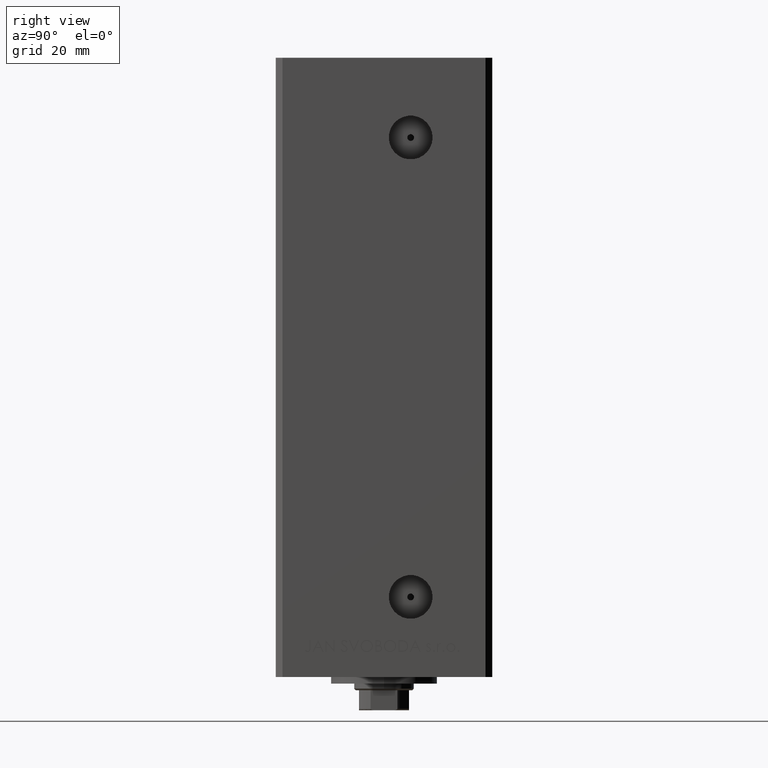
[diagram: clean part render]
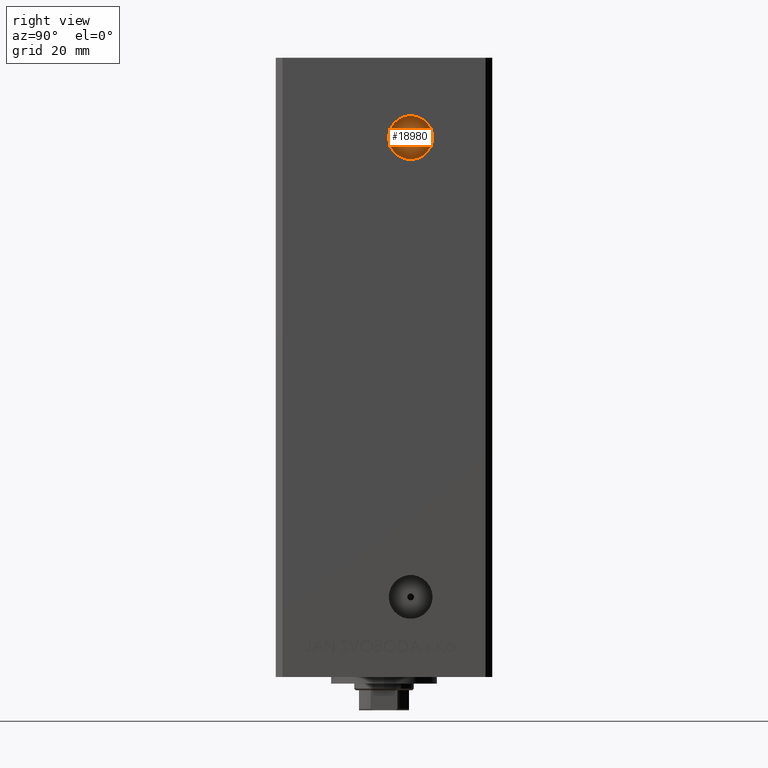
[diagram: same view with one face highlighted and labeled with its STEP entity id]
A machine part, right view. The second image highlights one B-rep face of the part: STEP entity #18980.
In plain terms, the highlighted planar face has unit normal (1, -0, 0).
Its self-contained STEP definition (entity closure, byte-faithful):
#1000 = VERTEX_POINT ( 'NONE', #10564 ) ;
#1093 = AXIS2_PLACEMENT_3D ( 'NONE', #17165, #36094, #16252 ) ;
#1196 = CIRCLE ( 'NONE', #48129, 0.9999999999999991118 ) ;
#1292 = CIRCLE ( 'NONE', #2872, 6.580000000000014282 ) ;
#2872 = AXIS2_PLACEMENT_3D ( 'NONE', #7316, #23524, #49182 ) ;
#3456 = EDGE_LOOP ( 'NONE', ( #7677, #27483 ) ) ;
#4092 = AXIS2_PLACEMENT_3D ( 'NONE', #41078, #25889, #18171 ) ;
#4334 = DIRECTION ( 'NONE',  ( 1.000000000000000000, -2.275047181608927644E-16, 0.000000000000000000 ) ) ;
#4979 = ORIENTED_EDGE ( 'NONE', *, *, #26172, .T. ) ;
#5947 = PLANE ( 'NONE',  #1093 ) ;
#7316 = CARTESIAN_POINT ( 'NONE',  ( 24.50000000000000000, 7.999999999999994671, 147.0000000000000000 ) ) ;
#7677 = ORIENTED_EDGE ( 'NONE', *, *, #25601, .F. ) ;
#10475 = VERTEX_POINT ( 'NONE', #42762 ) ;
#10564 = CARTESIAN_POINT ( 'NONE',  ( 24.50000000000000000, 14.58000000000000895, 147.0000000000000000 ) ) ;
#11268 = ORIENTED_EDGE ( 'NONE', *, *, #13652, .T. ) ;
#13652 = EDGE_CURVE ( 'NONE', #20744, #1000, #36718, .T. ) ;
#15621 = CIRCLE ( 'NONE', #45047, 0.9999999999999991118 ) ;
#15795 = CARTESIAN_POINT ( 'NONE',  ( 24.50000000000000000, 7.999999999999994671, 147.0000000000000000 ) ) ;
#16252 = DIRECTION ( 'NONE',  ( 2.275047181608927644E-16, 1.000000000000000000, 0.000000000000000000 ) ) ;
#17165 = CARTESIAN_POINT ( 'NONE',  ( 24.50000000000000000, 7.999999999999994671, 147.0000000000000000 ) ) ;
#17739 = DIRECTION ( 'NONE',  ( 1.000000000000000000, -2.275047181608927644E-16, 0.000000000000000000 ) ) ;
#18171 = DIRECTION ( 'NONE',  ( 0.000000000000000000, 1.000000000000000000, 0.000000000000000000 ) ) ;
#18733 = CARTESIAN_POINT ( 'NONE',  ( 24.50000000000000000, 8.999999999999994671, 147.0000000000000000 ) ) ;
#18980 = ADVANCED_FACE ( 'NONE', ( #19499, #46162 ), #5947, .T. ) ;
#19499 = FACE_BOUND ( 'NONE', #3456, .T. ) ;
#20744 = VERTEX_POINT ( 'NONE', #45111 ) ;
#21477 = CARTESIAN_POINT ( 'NONE',  ( 24.50000000000000000, 7.999999999999994671, 147.0000000000000000 ) ) ;
#23044 = EDGE_CURVE ( 'NONE', #10475, #23921, #1196, .T. ) ;
#23524 = DIRECTION ( 'NONE',  ( 1.000000000000000000, -2.275047181608927644E-16, 0.000000000000000000 ) ) ;
#23921 = VERTEX_POINT ( 'NONE', #18733 ) ;
#25601 = EDGE_CURVE ( 'NONE', #23921, #10475, #15621, .T. ) ;
#25739 = EDGE_LOOP ( 'NONE', ( #4979, #11268 ) ) ;
#25889 = DIRECTION ( 'NONE',  ( 1.000000000000000000, -2.275047181608927644E-16, 0.000000000000000000 ) ) ;
#26172 = EDGE_CURVE ( 'NONE', #1000, #20744, #1292, .T. ) ;
#27483 = ORIENTED_EDGE ( 'NONE', *, *, #23044, .F. ) ;
#27745 = DIRECTION ( 'NONE',  ( 0.000000000000000000, 1.000000000000000000, 0.000000000000000000 ) ) ;
#36094 = DIRECTION ( 'NONE',  ( 1.000000000000000000, -2.275047181608927644E-16, 0.000000000000000000 ) ) ;
#36718 = CIRCLE ( 'NONE', #4092, 6.580000000000014282 ) ;
#41078 = CARTESIAN_POINT ( 'NONE',  ( 24.50000000000000000, 7.999999999999994671, 147.0000000000000000 ) ) ;
#42762 = CARTESIAN_POINT ( 'NONE',  ( 24.50000000000000000, 6.999999999999996447, 147.0000000000000000 ) ) ;
#43906 = DIRECTION ( 'NONE',  ( 0.000000000000000000, 1.000000000000000000, 0.000000000000000000 ) ) ;
#45047 = AXIS2_PLACEMENT_3D ( 'NONE', #21477, #17739, #43906 ) ;
#45111 = CARTESIAN_POINT ( 'NONE',  ( 24.50000000000000000, 1.419999999999979501, 147.0000000000000000 ) ) ;
#46162 = FACE_OUTER_BOUND ( 'NONE', #25739, .T. ) ;
#48129 = AXIS2_PLACEMENT_3D ( 'NONE', #15795, #4334, #27745 ) ;
#49182 = DIRECTION ( 'NONE',  ( 0.000000000000000000, 1.000000000000000000, 0.000000000000000000 ) ) ;